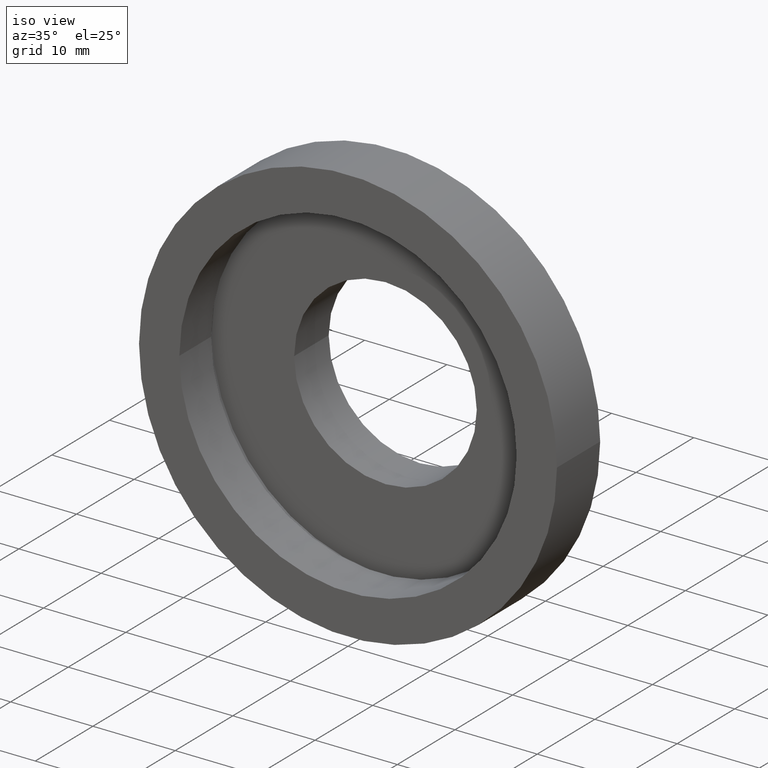
[diagram: clean part render]
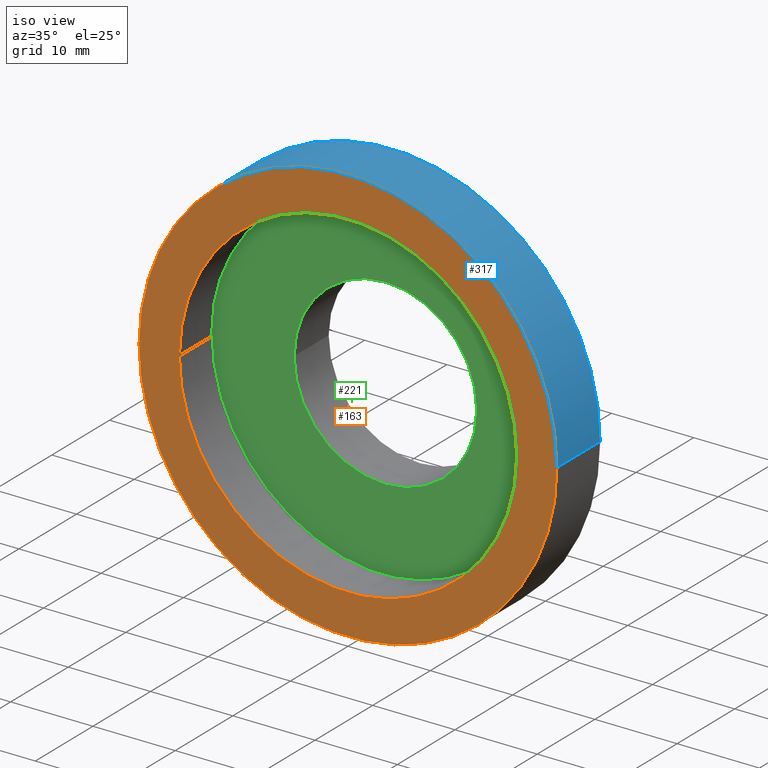
[diagram: same view with three faces highlighted in distinct colors, each labeled with its STEP entity id]
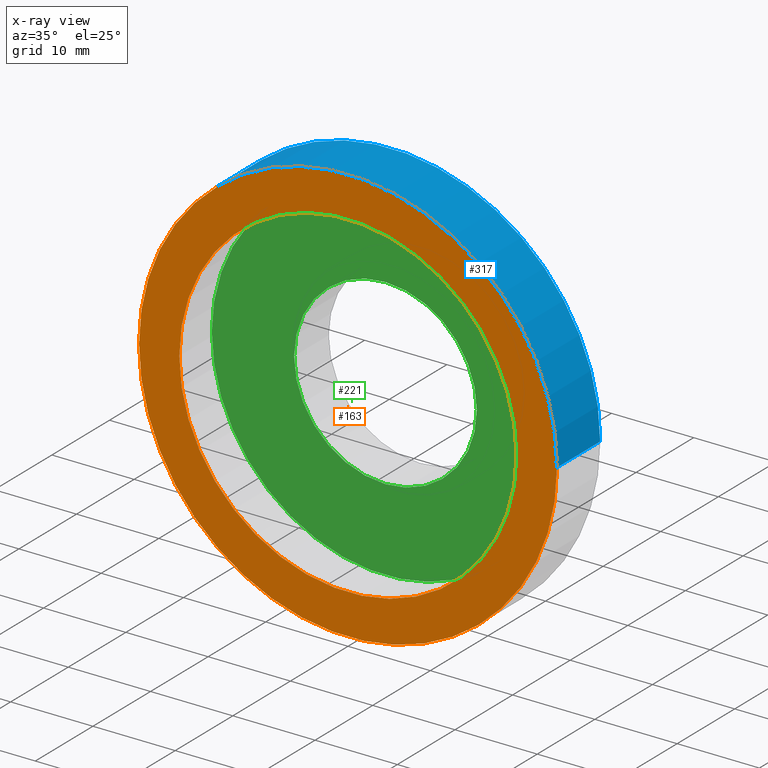
[diagram: x-ray of the same camera — body ghosted, the three highlighted faces saturated]
A machine part, iso view with three faces highlighted in distinct colors.
The next image is the same camera in x-ray (body ghosted, the three faces saturated) — at least one of them is partly hidden behind the body in this view.
Their STEP definitions:

[orange] entity #163 — the highlighted planar face has unit normal (-0, 1, 0).
#4 = CARTESIAN_POINT ( 'NONE',  ( 2.067940818438636500E-015, -3.469446951953614200E-015, 0.0000000000000000000 ) ) ;
#7 = DIRECTION ( 'NONE',  ( -1.000000000000000000, -1.224646799147351000E-016, 0.0000000000000000000 ) ) ;
#10 = CIRCLE ( 'NONE', #509, 20.50000000000000000 ) ;
#12 = DIRECTION ( 'NONE',  ( -1.224646799147351000E-016, 1.000000000000000000, 0.0000000000000000000 ) ) ;
#30 = ORIENTED_EDGE ( 'NONE', *, *, #521, .F. ) ;
#34 = CARTESIAN_POINT ( 'NONE',  ( 25.39999999999999900, -7.703719777548943400E-031, 0.0000000000000000000 ) ) ;
#44 = CARTESIAN_POINT ( 'NONE',  ( 2.067940818438636500E-015, -3.469446951953614200E-015, 0.0000000000000000000 ) ) ;
#52 = DIRECTION ( 'NONE',  ( -1.000000000000000000, -1.224646799147351000E-016, 0.0000000000000000000 ) ) ;
#60 = EDGE_CURVE ( 'NONE', #255, #418, #10, .T. ) ;
#61 = CARTESIAN_POINT ( 'NONE',  ( -20.49999999999999600, -5.979972890205683900E-015, 0.0000000000000000000 ) ) ;
#63 = CARTESIAN_POINT ( 'NONE',  ( 25.39999999999999900, -3.588440821193433400E-016, 3.110602869834276900E-015 ) ) ;
#85 = CARTESIAN_POINT ( 'NONE',  ( 2.067940818438636500E-015, -3.469446951953614200E-015, 0.0000000000000000000 ) ) ;
#88 = EDGE_LOOP ( 'NONE', ( #581, #267 ) ) ;
#97 = VERTEX_POINT ( 'NONE', #407 ) ;
#101 = AXIS2_PLACEMENT_3D ( 'NONE', #368, #565, #358 ) ;
#104 = DIRECTION ( 'NONE',  ( -1.000000000000000000, -1.224646799147351200E-016, 0.0000000000000000000 ) ) ;
#112 = PLANE ( 'NONE',  #400 ) ;
#151 = AXIS2_PLACEMENT_3D ( 'NONE', #4, #214, #489 ) ;
#163 = ADVANCED_FACE ( 'NONE', ( #474, #561 ), #112, .F. ) ;
#179 = AXIS2_PLACEMENT_3D ( 'NONE', #85, #200, #52 ) ;
#200 = DIRECTION ( 'NONE',  ( -1.224646799147351000E-016, 1.000000000000000000, -0.0000000000000000000 ) ) ;
#214 = DIRECTION ( 'NONE',  ( -1.224646799147351000E-016, 1.000000000000000000, -0.0000000000000000000 ) ) ;
#255 = VERTEX_POINT ( 'NONE', #61 ) ;
#267 = ORIENTED_EDGE ( 'NONE', *, *, #590, .T. ) ;
#269 = VERTEX_POINT ( 'NONE', #63 ) ;
#296 = CARTESIAN_POINT ( 'NONE',  ( 20.50000000000000400, -9.589210137015444400E-016, 2.510525938252074500E-015 ) ) ;
#358 = DIRECTION ( 'NONE',  ( -1.000000000000000000, -1.224646799147351200E-016, 0.0000000000000000000 ) ) ;
#368 = CARTESIAN_POINT ( 'NONE',  ( 2.067940818438636500E-015, -3.469446951953614200E-015, 0.0000000000000000000 ) ) ;
#400 = AXIS2_PLACEMENT_3D ( 'NONE', #34, #12, #7 ) ;
#407 = CARTESIAN_POINT ( 'NONE',  ( -25.39999999999999100, -6.580049821787884700E-015, 0.0000000000000000000 ) ) ;
#418 = VERTEX_POINT ( 'NONE', #296 ) ;
#426 = CIRCLE ( 'NONE', #179, 25.39999999999999500 ) ;
#433 = CIRCLE ( 'NONE', #101, 20.50000000000000000 ) ;
#435 = EDGE_LOOP ( 'NONE', ( #30, #559 ) ) ;
#474 = FACE_OUTER_BOUND ( 'NONE', #435, .T. ) ;
#489 = DIRECTION ( 'NONE',  ( -1.000000000000000000, -1.224646799147351000E-016, 0.0000000000000000000 ) ) ;
#509 = AXIS2_PLACEMENT_3D ( 'NONE', #44, #572, #104 ) ;
#521 = EDGE_CURVE ( 'NONE', #97, #269, #426, .T. ) ;
#532 = EDGE_CURVE ( 'NONE', #269, #97, #583, .T. ) ;
#559 = ORIENTED_EDGE ( 'NONE', *, *, #532, .F. ) ;
#561 = FACE_BOUND ( 'NONE', #88, .T. ) ;
#565 = DIRECTION ( 'NONE',  ( -1.224646799147351000E-016, 1.000000000000000000, -0.0000000000000000000 ) ) ;
#572 = DIRECTION ( 'NONE',  ( -1.224646799147351000E-016, 1.000000000000000000, -0.0000000000000000000 ) ) ;
#581 = ORIENTED_EDGE ( 'NONE', *, *, #60, .T. ) ;
#583 = CIRCLE ( 'NONE', #151, 25.39999999999999500 ) ;
#590 = EDGE_CURVE ( 'NONE', #418, #255, #433, .T. ) ;

[blue] entity #317 — the highlighted cylindrical surface (partial cylindrical patch) has radius 25.4 mm, axis along (-0, 1, -0).
#8 = CARTESIAN_POINT ( 'NONE',  ( 25.39999999999999900, 16.88601823708208000, 3.110602869834276900E-015 ) ) ;
#14 = CARTESIAN_POINT ( 'NONE',  ( -25.39999999999999900, 7.499999999999992900, 0.0000000000000000000 ) ) ;
#15 = EDGE_CURVE ( 'NONE', #97, #494, #579, .T. ) ;
#20 = EDGE_LOOP ( 'NONE', ( #377, #244, #283, #245 ) ) ;
#45 = CARTESIAN_POINT ( 'NONE',  ( 25.39999999999999900, 7.500000000000000000, 3.110602869834276900E-015 ) ) ;
#52 = DIRECTION ( 'NONE',  ( -1.000000000000000000, -1.224646799147351000E-016, 0.0000000000000000000 ) ) ;
#63 = CARTESIAN_POINT ( 'NONE',  ( 25.39999999999999900, -3.588440821193433400E-016, 3.110602869834276900E-015 ) ) ;
#79 = EDGE_CURVE ( 'NONE', #494, #402, #156, .T. ) ;
#85 = CARTESIAN_POINT ( 'NONE',  ( 2.067940818438636500E-015, -3.469446951953614200E-015, 0.0000000000000000000 ) ) ;
#94 = FACE_OUTER_BOUND ( 'NONE', #20, .T. ) ;
#97 = VERTEX_POINT ( 'NONE', #407 ) ;
#156 = CIRCLE ( 'NONE', #507, 25.39999999999999900 ) ;
#179 = AXIS2_PLACEMENT_3D ( 'NONE', #85, #200, #52 ) ;
#200 = DIRECTION ( 'NONE',  ( -1.224646799147351000E-016, 1.000000000000000000, -0.0000000000000000000 ) ) ;
#209 = VECTOR ( 'NONE', #263, 1000.000000000000000 ) ;
#244 = ORIENTED_EDGE ( 'NONE', *, *, #558, .T. ) ;
#245 = ORIENTED_EDGE ( 'NONE', *, *, #15, .F. ) ;
#263 = DIRECTION ( 'NONE',  ( -1.224646799147351000E-016, 1.000000000000000000, -0.0000000000000000000 ) ) ;
#269 = VERTEX_POINT ( 'NONE', #63 ) ;
#278 = CARTESIAN_POINT ( 'NONE',  ( -25.39999999999999900, 16.88601823708207300, 0.0000000000000000000 ) ) ;
#283 = ORIENTED_EDGE ( 'NONE', *, *, #79, .F. ) ;
#317 = ADVANCED_FACE ( 'NONE', ( #94 ), #347, .T. ) ;
#346 = AXIS2_PLACEMENT_3D ( 'NONE', #592, #530, #618 ) ;
#347 = CYLINDRICAL_SURFACE ( 'NONE', #346, 25.39999999999999900 ) ;
#377 = ORIENTED_EDGE ( 'NONE', *, *, #521, .T. ) ;
#402 = VERTEX_POINT ( 'NONE', #45 ) ;
#407 = CARTESIAN_POINT ( 'NONE',  ( -25.39999999999999100, -6.580049821787884700E-015, 0.0000000000000000000 ) ) ;
#426 = CIRCLE ( 'NONE', #179, 25.39999999999999500 ) ;
#442 = VECTOR ( 'NONE', #457, 1000.000000000000000 ) ;
#457 = DIRECTION ( 'NONE',  ( -1.224646799147351000E-016, 1.000000000000000000, -0.0000000000000000000 ) ) ;
#494 = VERTEX_POINT ( 'NONE', #14 ) ;
#495 = LINE ( 'NONE', #8, #442 ) ;
#507 = AXIS2_PLACEMENT_3D ( 'NONE', #555, #551, #547 ) ;
#521 = EDGE_CURVE ( 'NONE', #97, #269, #426, .T. ) ;
#530 = DIRECTION ( 'NONE',  ( -1.224646799147351000E-016, 1.000000000000000000, -0.0000000000000000000 ) ) ;
#547 = DIRECTION ( 'NONE',  ( -1.000000000000000000, -1.365923996832131600E-016, 0.0000000000000000000 ) ) ;
#551 = DIRECTION ( 'NONE',  ( -1.224646799147351000E-016, 1.000000000000000000, -0.0000000000000000000 ) ) ;
#555 = CARTESIAN_POINT ( 'NONE',  ( 1.149455719078123100E-015, 7.499999999999996400, 0.0000000000000000000 ) ) ;
#558 = EDGE_CURVE ( 'NONE', #269, #402, #495, .T. ) ;
#579 = LINE ( 'NONE', #278, #209 ) ;
#592 = CARTESIAN_POINT ( 'NONE',  ( 0.0000000000000000000, 16.88601823708207700, 0.0000000000000000000 ) ) ;
#618 = DIRECTION ( 'NONE',  ( -1.000000000000000000, -1.365923996832131600E-016, 0.0000000000000000000 ) ) ;

[green] entity #221 — the highlighted planar face has unit normal (-0, 1, 0).
#25 = EDGE_CURVE ( 'NONE', #448, #58, #440, .T. ) ;
#29 = PLANE ( 'NONE',  #369 ) ;
#58 = VERTEX_POINT ( 'NONE', #188 ) ;
#74 = CARTESIAN_POINT ( 'NONE',  ( 11.10000000000000100, 6.499999999999999100, 1.359357947053562400E-015 ) ) ;
#89 = DIRECTION ( 'NONE',  ( -1.224646799147351000E-016, 1.000000000000000000, -0.0000000000000000000 ) ) ;
#106 = EDGE_CURVE ( 'NONE', #58, #448, #615, .T. ) ;
#110 = DIRECTION ( 'NONE',  ( -1.000000000000000000, -1.562813942321447800E-016, 0.0000000000000000000 ) ) ;
#116 = AXIS2_PLACEMENT_3D ( 'NONE', #619, #89, #444 ) ;
#154 = CARTESIAN_POINT ( 'NONE',  ( 11.10000000000000100, 6.499999999999998200, 0.0000000000000000000 ) ) ;
#180 = EDGE_CURVE ( 'NONE', #274, #416, #605, .T. ) ;
#188 = CARTESIAN_POINT ( 'NONE',  ( -21.10000000000000100, 6.499999999999994700, 0.0000000000000000000 ) ) ;
#218 = ORIENTED_EDGE ( 'NONE', *, *, #180, .T. ) ;
#221 = ADVANCED_FACE ( 'NONE', ( #614, #523 ), #29, .F. ) ;
#237 = EDGE_LOOP ( 'NONE', ( #218, #345 ) ) ;
#250 = CARTESIAN_POINT ( 'NONE',  ( -11.09999999999999800, 6.499999999999995600, 0.0000000000000000000 ) ) ;
#274 = VERTEX_POINT ( 'NONE', #250 ) ;
#288 = DIRECTION ( 'NONE',  ( -1.224646799147351000E-016, 1.000000000000000000, 0.0000000000000000000 ) ) ;
#295 = CARTESIAN_POINT ( 'NONE',  ( 1.271920398992858000E-015, 6.499999999999997300, 0.0000000000000000000 ) ) ;
#303 = DIRECTION ( 'NONE',  ( -1.224646799147351000E-016, 1.000000000000000000, -0.0000000000000000000 ) ) ;
#305 = ORIENTED_EDGE ( 'NONE', *, *, #106, .F. ) ;
#308 = DIRECTION ( 'NONE',  ( -1.000000000000000000, -1.233215741215739600E-016, 0.0000000000000000000 ) ) ;
#327 = DIRECTION ( 'NONE',  ( -1.000000000000000000, -1.233215741215739600E-016, 0.0000000000000000000 ) ) ;
#329 = DIRECTION ( 'NONE',  ( -1.224646799147351000E-016, 1.000000000000000000, -0.0000000000000000000 ) ) ;
#332 = CARTESIAN_POINT ( 'NONE',  ( 1.271920398992858000E-015, 6.499999999999997300, 0.0000000000000000000 ) ) ;
#345 = ORIENTED_EDGE ( 'NONE', *, *, #576, .T. ) ;
#348 = DIRECTION ( 'NONE',  ( -1.000000000000000000, -1.224646799147351000E-016, 0.0000000000000000000 ) ) ;
#369 = AXIS2_PLACEMENT_3D ( 'NONE', #154, #288, #348 ) ;
#381 = EDGE_LOOP ( 'NONE', ( #305, #493 ) ) ;
#404 = AXIS2_PLACEMENT_3D ( 'NONE', #585, #586, #110 ) ;
#411 = CARTESIAN_POINT ( 'NONE',  ( 21.10000000000000100, 6.500000000000000000, 2.584004746200915400E-015 ) ) ;
#416 = VERTEX_POINT ( 'NONE', #74 ) ;
#440 = CIRCLE ( 'NONE', #514, 21.10000000000000100 ) ;
#444 = DIRECTION ( 'NONE',  ( -1.000000000000000000, -1.562813942321447800E-016, 0.0000000000000000000 ) ) ;
#448 = VERTEX_POINT ( 'NONE', #411 ) ;
#450 = CIRCLE ( 'NONE', #116, 11.10000000000000000 ) ;
#493 = ORIENTED_EDGE ( 'NONE', *, *, #25, .F. ) ;
#496 = AXIS2_PLACEMENT_3D ( 'NONE', #332, #329, #327 ) ;
#514 = AXIS2_PLACEMENT_3D ( 'NONE', #295, #303, #308 ) ;
#523 = FACE_BOUND ( 'NONE', #237, .T. ) ;
#576 = EDGE_CURVE ( 'NONE', #416, #274, #450, .T. ) ;
#585 = CARTESIAN_POINT ( 'NONE',  ( 1.271920398992858000E-015, 6.499999999999997300, 0.0000000000000000000 ) ) ;
#586 = DIRECTION ( 'NONE',  ( -1.224646799147351000E-016, 1.000000000000000000, -0.0000000000000000000 ) ) ;
#605 = CIRCLE ( 'NONE', #404, 11.10000000000000000 ) ;
#614 = FACE_OUTER_BOUND ( 'NONE', #381, .T. ) ;
#615 = CIRCLE ( 'NONE', #496, 21.10000000000000100 ) ;
#619 = CARTESIAN_POINT ( 'NONE',  ( 1.271920398992858000E-015, 6.499999999999997300, 0.0000000000000000000 ) ) ;